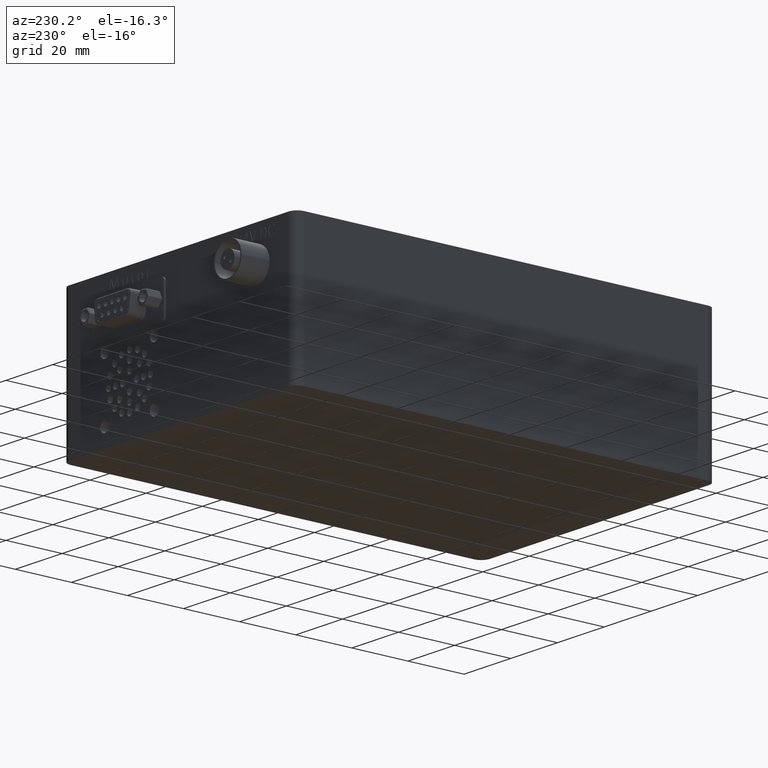
[diagram: clean part render]
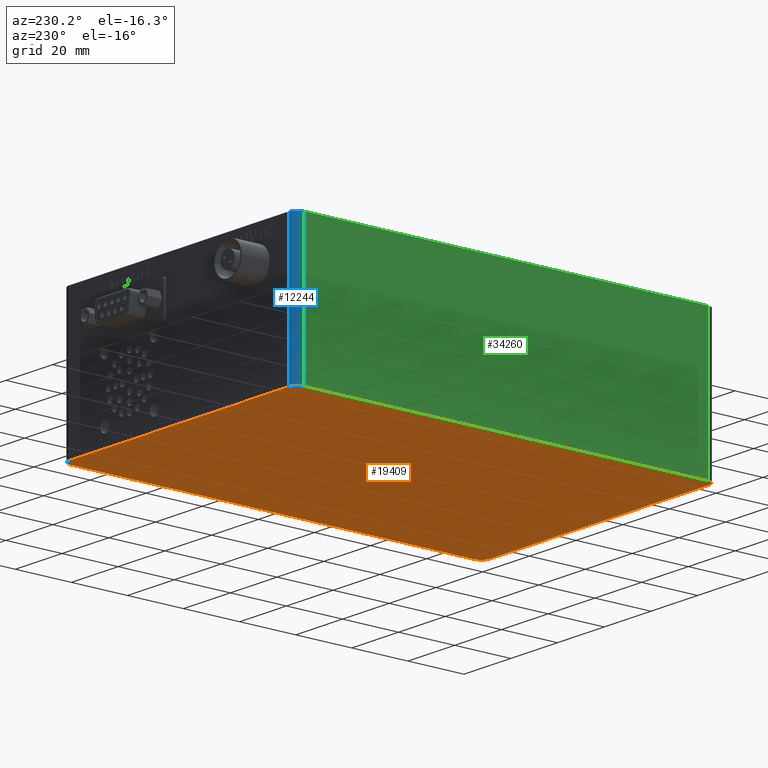
[diagram: same view with three faces highlighted in distinct colors, each labeled with its STEP entity id]
A machine part, auxiliary view with three faces highlighted in distinct colors.
Their STEP definitions:

[orange] entity #19409 — the highlighted planar face has unit normal (0, 0, -1).
#292 = LINE ( 'NONE', #43521, #47921 ) ;
#736 = CARTESIAN_POINT ( 'NONE',  ( 97.00000000000000000, 147.0000000000000000, -50.00000000000000000 ) ) ;
#777 = CIRCLE ( 'NONE', #33451, 3.000000000000002665 ) ;
#1126 = CARTESIAN_POINT ( 'NONE',  ( 3.000000000000000000, 0.000000000000000000, -50.00000000000000000 ) ) ;
#1560 = VERTEX_POINT ( 'NONE', #31394 ) ;
#2791 = EDGE_CURVE ( 'NONE', #54934, #1560, #5504, .T. ) ;
#3534 = ORIENTED_EDGE ( 'NONE', *, *, #30207, .T. ) ;
#4756 = CARTESIAN_POINT ( 'NONE',  ( 97.00000000000000000, 150.0000000000000000, -50.00000000000000000 ) ) ;
#5504 = CIRCLE ( 'NONE', #32215, 3.000000000000000000 ) ;
#5636 = EDGE_CURVE ( 'NONE', #51795, #26745, #777, .T. ) ;
#5803 = ORIENTED_EDGE ( 'NONE', *, *, #29643, .T. ) ;
#5906 = DIRECTION ( 'NONE',  ( 0.000000000000000000, 0.000000000000000000, -1.000000000000000000 ) ) ;
#6004 = VECTOR ( 'NONE', #15359, 1000.000000000000000 ) ;
#7605 = AXIS2_PLACEMENT_3D ( 'NONE', #56749, #49138, #9154 ) ;
#8718 = LINE ( 'NONE', #57471, #47997 ) ;
#8851 = PLANE ( 'NONE',  #7605 ) ;
#9154 = DIRECTION ( 'NONE',  ( 0.000000000000000000, 1.000000000000000000, 0.000000000000000000 ) ) ;
#9209 = DIRECTION ( 'NONE',  ( 0.000000000000000000, 0.000000000000000000, -1.000000000000000000 ) ) ;
#11456 = CARTESIAN_POINT ( 'NONE',  ( 97.00000000000000000, 3.000000000000000000, -50.00000000000000000 ) ) ;
#12117 = LINE ( 'NONE', #51542, #51023 ) ;
#12864 = DIRECTION ( 'NONE',  ( 1.000000000000000000, 0.000000000000000000, 0.000000000000000000 ) ) ;
#12938 = ORIENTED_EDGE ( 'NONE', *, *, #5636, .T. ) ;
#13112 = DIRECTION ( 'NONE',  ( 1.000000000000000000, 0.000000000000000000, 0.000000000000000000 ) ) ;
#15359 = DIRECTION ( 'NONE',  ( 0.000000000000000000, -1.000000000000000000, 0.000000000000000000 ) ) ;
#15800 = ORIENTED_EDGE ( 'NONE', *, *, #26449, .F. ) ;
#18257 = DIRECTION ( 'NONE',  ( 0.000000000000000000, 1.000000000000000000, 0.000000000000000000 ) ) ;
#19064 = DIRECTION ( 'NONE',  ( 0.000000000000000000, 1.000000000000000000, 0.000000000000000000 ) ) ;
#19409 = ADVANCED_FACE ( 'NONE', ( #43880 ), #8851, .T. ) ;
#19791 = EDGE_LOOP ( 'NONE', ( #15800, #12938, #3534, #5803, #41011, #23923, #37918, #40270 ) ) ;
#20034 = DIRECTION ( 'NONE',  ( 0.000000000000000000, -1.000000000000000000, 0.000000000000000000 ) ) ;
#21803 = AXIS2_PLACEMENT_3D ( 'NONE', #24608, #5906, #19064 ) ;
#23887 = CARTESIAN_POINT ( 'NONE',  ( 3.000000000000000000, 147.0000000000000000, -50.00000000000000000 ) ) ;
#23923 = ORIENTED_EDGE ( 'NONE', *, *, #2791, .T. ) ;
#24601 = DIRECTION ( 'NONE',  ( 0.000000000000000000, 0.000000000000000000, -1.000000000000000000 ) ) ;
#24608 = CARTESIAN_POINT ( 'NONE',  ( 3.000000000000000000, 3.000000000000000000, -50.00000000000000000 ) ) ;
#26449 = EDGE_CURVE ( 'NONE', #51795, #50547, #55347, .T. ) ;
#26745 = VERTEX_POINT ( 'NONE', #54140 ) ;
#27535 = CIRCLE ( 'NONE', #43344, 3.000000000000002665 ) ;
#28252 = DIRECTION ( 'NONE',  ( 0.000000000000000000, 1.000000000000000000, 0.000000000000000000 ) ) ;
#29546 = DIRECTION ( 'NONE',  ( 0.000000000000000000, 1.000000000000000000, 0.000000000000000000 ) ) ;
#29643 = EDGE_CURVE ( 'NONE', #38267, #54055, #27535, .T. ) ;
#30207 = EDGE_CURVE ( 'NONE', #26745, #38267, #292, .T. ) ;
#31394 = CARTESIAN_POINT ( 'NONE',  ( 97.00000000000000000, 0.000000000000000000, -50.00000000000000000 ) ) ;
#32215 = AXIS2_PLACEMENT_3D ( 'NONE', #11456, #24601, #29546 ) ;
#33451 = AXIS2_PLACEMENT_3D ( 'NONE', #23887, #41680, #28252 ) ;
#37337 = EDGE_CURVE ( 'NONE', #40746, #50547, #44162, .T. ) ;
#37918 = ORIENTED_EDGE ( 'NONE', *, *, #40520, .F. ) ;
#38267 = VERTEX_POINT ( 'NONE', #4756 ) ;
#39447 = CARTESIAN_POINT ( 'NONE',  ( 100.0000000000000000, 3.000000000000002665, -50.00000000000000000 ) ) ;
#39972 = CARTESIAN_POINT ( 'NONE',  ( 100.0000000000000000, 147.0000000000000000, -50.00000000000000000 ) ) ;
#40270 = ORIENTED_EDGE ( 'NONE', *, *, #37337, .T. ) ;
#40520 = EDGE_CURVE ( 'NONE', #40746, #1560, #8718, .T. ) ;
#40746 = VERTEX_POINT ( 'NONE', #1126 ) ;
#41011 = ORIENTED_EDGE ( 'NONE', *, *, #51778, .T. ) ;
#41680 = DIRECTION ( 'NONE',  ( 0.000000000000000000, 0.000000000000000000, -1.000000000000000000 ) ) ;
#42777 = CARTESIAN_POINT ( 'NONE',  ( 0.000000000000000000, 147.0000000000000000, -50.00000000000000000 ) ) ;
#43344 = AXIS2_PLACEMENT_3D ( 'NONE', #736, #9209, #18257 ) ;
#43521 = CARTESIAN_POINT ( 'NONE',  ( 0.000000000000000000, 150.0000000000000000, -50.00000000000000000 ) ) ;
#43880 = FACE_OUTER_BOUND ( 'NONE', #19791, .T. ) ;
#44162 = CIRCLE ( 'NONE', #21803, 3.000000000000000000 ) ;
#47921 = VECTOR ( 'NONE', #12864, 1000.000000000000000 ) ;
#47997 = VECTOR ( 'NONE', #13112, 1000.000000000000000 ) ;
#49138 = DIRECTION ( 'NONE',  ( 0.000000000000000000, 0.000000000000000000, -1.000000000000000000 ) ) ;
#50547 = VERTEX_POINT ( 'NONE', #57789 ) ;
#51023 = VECTOR ( 'NONE', #20034, 1000.000000000000000 ) ;
#51274 = CARTESIAN_POINT ( 'NONE',  ( 0.000000000000000000, 150.0000000000000000, -50.00000000000000000 ) ) ;
#51542 = CARTESIAN_POINT ( 'NONE',  ( 100.0000000000000000, 150.0000000000000000, -50.00000000000000000 ) ) ;
#51778 = EDGE_CURVE ( 'NONE', #54055, #54934, #12117, .T. ) ;
#51795 = VERTEX_POINT ( 'NONE', #42777 ) ;
#54055 = VERTEX_POINT ( 'NONE', #39972 ) ;
#54140 = CARTESIAN_POINT ( 'NONE',  ( 3.000000000000000000, 150.0000000000000000, -50.00000000000000000 ) ) ;
#54934 = VERTEX_POINT ( 'NONE', #39447 ) ;
#55347 = LINE ( 'NONE', #51274, #6004 ) ;
#56749 = CARTESIAN_POINT ( 'NONE',  ( 0.000000000000000000, 150.0000000000000000, -50.00000000000000000 ) ) ;
#57471 = CARTESIAN_POINT ( 'NONE',  ( 0.000000000000000000, 0.000000000000000000, -50.00000000000000000 ) ) ;
#57789 = CARTESIAN_POINT ( 'NONE',  ( 0.000000000000000000, 3.000000000000002665, -50.00000000000000000 ) ) ;

[blue] entity #12244 — the highlighted cylindrical surface (edge-blend (fillet) strip) has radius 3 mm, axis along (0, 0, -1).
#219 = CARTESIAN_POINT ( 'NONE',  ( 3.000000000000000000, 150.0000000000000000, 0.000000000000000000 ) ) ;
#777 = CIRCLE ( 'NONE', #33451, 3.000000000000002665 ) ;
#4557 = ORIENTED_EDGE ( 'NONE', *, *, #5636, .F. ) ;
#5636 = EDGE_CURVE ( 'NONE', #51795, #26745, #777, .T. ) ;
#6085 = AXIS2_PLACEMENT_3D ( 'NONE', #30723, #48520, #44716 ) ;
#7584 = ORIENTED_EDGE ( 'NONE', *, *, #16326, .F. ) ;
#8077 = CARTESIAN_POINT ( 'NONE',  ( 3.000000000000000000, 147.0000000000000000, -50.00000000000000000 ) ) ;
#8166 = VERTEX_POINT ( 'NONE', #219 ) ;
#9993 = CARTESIAN_POINT ( 'NONE',  ( 0.000000000000000000, 147.0000000000000000, -50.00000000000000000 ) ) ;
#11675 = CARTESIAN_POINT ( 'NONE',  ( 0.000000000000000000, 147.0000000000000000, 0.000000000000000000 ) ) ;
#12044 = EDGE_LOOP ( 'NONE', ( #32443, #35762, #4557, #7584 ) ) ;
#12244 = ADVANCED_FACE ( 'NONE', ( #42850 ), #20698, .T. ) ;
#13123 = LINE ( 'NONE', #39689, #34092 ) ;
#16326 = EDGE_CURVE ( 'NONE', #54072, #51795, #40076, .T. ) ;
#20698 = CYLINDRICAL_SURFACE ( 'NONE', #41091, 3.000000000000002665 ) ;
#22477 = DIRECTION ( 'NONE',  ( -0.000000000000000000, -0.000000000000000000, 1.000000000000000000 ) ) ;
#23887 = CARTESIAN_POINT ( 'NONE',  ( 3.000000000000000000, 147.0000000000000000, -50.00000000000000000 ) ) ;
#26745 = VERTEX_POINT ( 'NONE', #54140 ) ;
#28252 = DIRECTION ( 'NONE',  ( 0.000000000000000000, 1.000000000000000000, 0.000000000000000000 ) ) ;
#30723 = CARTESIAN_POINT ( 'NONE',  ( 3.000000000000000000, 147.0000000000000000, 0.000000000000000000 ) ) ;
#32443 = ORIENTED_EDGE ( 'NONE', *, *, #42409, .F. ) ;
#33451 = AXIS2_PLACEMENT_3D ( 'NONE', #23887, #41680, #28252 ) ;
#34092 = VECTOR ( 'NONE', #22477, 1000.000000000000000 ) ;
#35762 = ORIENTED_EDGE ( 'NONE', *, *, #41423, .F. ) ;
#39327 = DIRECTION ( 'NONE',  ( 0.000000000000000000, 1.000000000000000000, 0.000000000000000000 ) ) ;
#39631 = CIRCLE ( 'NONE', #6085, 3.000000000000002665 ) ;
#39689 = CARTESIAN_POINT ( 'NONE',  ( 3.000000000000000000, 150.0000000000000000, -50.00000000000000000 ) ) ;
#40076 = LINE ( 'NONE', #9993, #48505 ) ;
#41091 = AXIS2_PLACEMENT_3D ( 'NONE', #8077, #52744, #39327 ) ;
#41423 = EDGE_CURVE ( 'NONE', #26745, #8166, #13123, .T. ) ;
#41680 = DIRECTION ( 'NONE',  ( 0.000000000000000000, 0.000000000000000000, -1.000000000000000000 ) ) ;
#42409 = EDGE_CURVE ( 'NONE', #8166, #54072, #39631, .T. ) ;
#42777 = CARTESIAN_POINT ( 'NONE',  ( 0.000000000000000000, 147.0000000000000000, -50.00000000000000000 ) ) ;
#42850 = FACE_OUTER_BOUND ( 'NONE', #12044, .T. ) ;
#44716 = DIRECTION ( 'NONE',  ( 0.000000000000000000, -1.000000000000000000, 0.000000000000000000 ) ) ;
#45591 = DIRECTION ( 'NONE',  ( 0.000000000000000000, 0.000000000000000000, -1.000000000000000000 ) ) ;
#48505 = VECTOR ( 'NONE', #45591, 1000.000000000000000 ) ;
#48520 = DIRECTION ( 'NONE',  ( 0.000000000000000000, 0.000000000000000000, 1.000000000000000000 ) ) ;
#51795 = VERTEX_POINT ( 'NONE', #42777 ) ;
#52744 = DIRECTION ( 'NONE',  ( 0.000000000000000000, 0.000000000000000000, -1.000000000000000000 ) ) ;
#54072 = VERTEX_POINT ( 'NONE', #11675 ) ;
#54140 = CARTESIAN_POINT ( 'NONE',  ( 3.000000000000000000, 150.0000000000000000, -50.00000000000000000 ) ) ;

[green] entity #34260 — the highlighted planar face has unit normal (-1, 0, 0).
#568 = EDGE_LOOP ( 'NONE', ( #27025, #3536, #7259, #36751 ) ) ;
#2102 = CARTESIAN_POINT ( 'NONE',  ( 0.000000000000000000, 150.0000000000000000, 0.000000000000000000 ) ) ;
#3536 = ORIENTED_EDGE ( 'NONE', *, *, #16326, .T. ) ;
#3879 = CARTESIAN_POINT ( 'NONE',  ( 0.000000000000000000, 3.000000000000002665, 0.000000000000000000 ) ) ;
#4405 = FACE_OUTER_BOUND ( 'NONE', #568, .T. ) ;
#5137 = EDGE_CURVE ( 'NONE', #54072, #30715, #14965, .T. ) ;
#6004 = VECTOR ( 'NONE', #15359, 1000.000000000000000 ) ;
#7259 = ORIENTED_EDGE ( 'NONE', *, *, #26449, .T. ) ;
#8284 = CARTESIAN_POINT ( 'NONE',  ( 0.000000000000000000, 3.000000000000000000, 0.000000000000000000 ) ) ;
#9993 = CARTESIAN_POINT ( 'NONE',  ( 0.000000000000000000, 147.0000000000000000, -50.00000000000000000 ) ) ;
#10089 = VECTOR ( 'NONE', #47340, 1000.000000000000000 ) ;
#11675 = CARTESIAN_POINT ( 'NONE',  ( 0.000000000000000000, 147.0000000000000000, 0.000000000000000000 ) ) ;
#11911 = EDGE_CURVE ( 'NONE', #50547, #30715, #25827, .T. ) ;
#14965 = LINE ( 'NONE', #2102, #10089 ) ;
#15359 = DIRECTION ( 'NONE',  ( 0.000000000000000000, -1.000000000000000000, 0.000000000000000000 ) ) ;
#16220 = DIRECTION ( 'NONE',  ( -0.000000000000000000, -0.000000000000000000, 1.000000000000000000 ) ) ;
#16326 = EDGE_CURVE ( 'NONE', #54072, #51795, #40076, .T. ) ;
#21309 = PLANE ( 'NONE',  #35005 ) ;
#22156 = CARTESIAN_POINT ( 'NONE',  ( 0.000000000000000000, 150.0000000000000000, -50.00000000000000000 ) ) ;
#25827 = LINE ( 'NONE', #8284, #40128 ) ;
#26449 = EDGE_CURVE ( 'NONE', #51795, #50547, #55347, .T. ) ;
#27025 = ORIENTED_EDGE ( 'NONE', *, *, #5137, .F. ) ;
#30715 = VERTEX_POINT ( 'NONE', #3879 ) ;
#34260 = ADVANCED_FACE ( 'NONE', ( #4405 ), #21309, .T. ) ;
#35005 = AXIS2_PLACEMENT_3D ( 'NONE', #22156, #57740, #48406 ) ;
#36751 = ORIENTED_EDGE ( 'NONE', *, *, #11911, .T. ) ;
#40076 = LINE ( 'NONE', #9993, #48505 ) ;
#40128 = VECTOR ( 'NONE', #16220, 1000.000000000000000 ) ;
#42777 = CARTESIAN_POINT ( 'NONE',  ( 0.000000000000000000, 147.0000000000000000, -50.00000000000000000 ) ) ;
#45591 = DIRECTION ( 'NONE',  ( 0.000000000000000000, 0.000000000000000000, -1.000000000000000000 ) ) ;
#47340 = DIRECTION ( 'NONE',  ( 0.000000000000000000, -1.000000000000000000, 0.000000000000000000 ) ) ;
#48406 = DIRECTION ( 'NONE',  ( 0.000000000000000000, -1.000000000000000000, 0.000000000000000000 ) ) ;
#48505 = VECTOR ( 'NONE', #45591, 1000.000000000000000 ) ;
#50547 = VERTEX_POINT ( 'NONE', #57789 ) ;
#51274 = CARTESIAN_POINT ( 'NONE',  ( 0.000000000000000000, 150.0000000000000000, -50.00000000000000000 ) ) ;
#51795 = VERTEX_POINT ( 'NONE', #42777 ) ;
#54072 = VERTEX_POINT ( 'NONE', #11675 ) ;
#55347 = LINE ( 'NONE', #51274, #6004 ) ;
#57740 = DIRECTION ( 'NONE',  ( -1.000000000000000000, 0.000000000000000000, 0.000000000000000000 ) ) ;
#57789 = CARTESIAN_POINT ( 'NONE',  ( 0.000000000000000000, 3.000000000000002665, -50.00000000000000000 ) ) ;